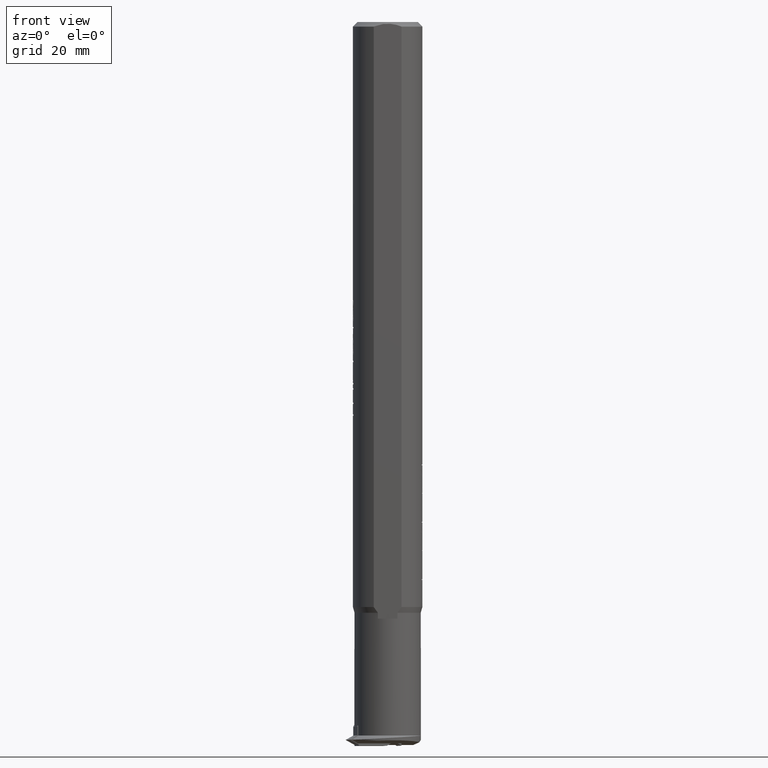
[diagram: clean part render]
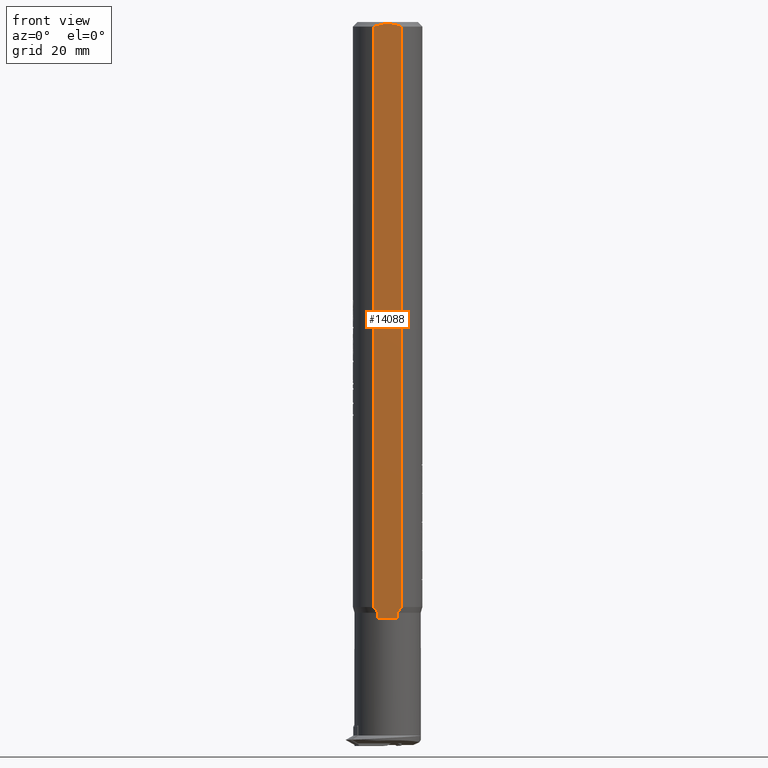
[diagram: same view with one face highlighted and labeled with its STEP entity id]
A machine part, front view. The second image highlights one B-rep face of the part: STEP entity #14088.
In plain terms, the highlighted planar face has unit normal (0, 1, 0).
Its self-contained STEP definition (entity closure, byte-faithful):
#92 = CARTESIAN_POINT ( 'NONE',  ( 15.85597794397921412, 15.47579512833312876, 30.10978475732757076 ) ) ;
#337 = VERTEX_POINT ( 'NONE', #10932 ) ;
#355 = VERTEX_POINT ( 'NONE', #2674 ) ;
#443 = VERTEX_POINT ( 'NONE', #9964 ) ;
#488 = ORIENTED_EDGE ( 'NONE', *, *, #8204, .F. ) ;
#607 = CARTESIAN_POINT ( 'NONE',  ( -87.24402205604130245, 15.47579512832777660, 33.46388672357572602 ) ) ;
#826 = CARTESIAN_POINT ( 'NONE',  ( -85.34402205602309266, 15.47579512832781035, 29.38891997880680762 ) ) ;
#1115 = ORIENTED_EDGE ( 'NONE', *, *, #1974, .F. ) ;
#1173 = CARTESIAN_POINT ( 'NONE',  ( -87.24402205604130245, 15.47579512832781568, 30.10978475732587611 ) ) ;
#1217 = EDGE_CURVE ( 'NONE', #355, #7209, #12611, .T. ) ;
#1358 = EDGE_CURVE ( 'NONE', #1454, #355, #14160, .T. ) ;
#1454 = VERTEX_POINT ( 'NONE', #92 ) ;
#1625 = CARTESIAN_POINT ( 'NONE',  ( -87.24402205604130245, 15.47579512832781390, 29.38891997879452234 ) ) ;
#1974 = EDGE_CURVE ( 'NONE', #443, #337, #5346, .T. ) ;
#2091 = ORIENTED_EDGE ( 'NONE', *, *, #1217, .F. ) ;
#2108 = ORIENTED_EDGE ( 'NONE', *, *, #1358, .F. ) ;
#2466 = ORIENTED_EDGE ( 'NONE', *, *, #9366, .F. ) ;
#2674 = CARTESIAN_POINT ( 'NONE',  ( 14.85597794396622362, 15.47579512832781035, 29.38891997878251416 ) ) ;
#3080 = CARTESIAN_POINT ( 'NONE',  ( 14.85597794395958537, 15.47579512832780679, 34.18475150212336899 ) ) ;
#3091 = DIRECTION ( 'NONE',  ( 1.000000000000000000, 0.000000000000000000, 0.000000000000000000 ) ) ;
#3234 = VECTOR ( 'NONE', #10793, 1000.000000000000000 ) ;
#3246 = EDGE_CURVE ( 'NONE', #12803, #15793, #10407, .T. ) ;
#3299 = CARTESIAN_POINT ( 'NONE',  ( 14.85597794396622362, 15.47579512832781035, 29.38891997878251416 ) ) ;
#3548 = PLANE ( 'NONE',  #10221 ) ;
#3642 = CARTESIAN_POINT ( 'NONE',  ( -85.62270775363694497, 15.47579512832781035, 30.16355541109078331 ) ) ;
#4525 = CARTESIAN_POINT ( 'NONE',  ( -85.75272465052165671, 15.47579512832781212, 30.76189325582878453 ) ) ;
#4599 = DIRECTION ( 'NONE',  ( 0.000000000000000000, 1.000000000000000000, 0.000000000000000000 ) ) ;
#4606 = CARTESIAN_POINT ( 'NONE',  ( 15.20509743724650065, 15.47579512832780857, 33.96636216239427597 ) ) ;
#4609 = CARTESIAN_POINT ( 'NONE',  ( -85.49774328179755400, 15.47579512832781035, 33.80011440618757490 ) ) ;
#5318 = DIRECTION ( 'NONE',  ( -1.000000000000000000, -0.000000000000000000, -0.000000000000000000 ) ) ;
#5346 = LINE ( 'NONE', #607, #5395 ) ;
#5395 = VECTOR ( 'NONE', #3091, 1000.000000000000000 ) ;
#5705 = EDGE_LOOP ( 'NONE', ( #1115, #488, #13062, #2466, #2091, #2108, #11677, #14162 ) ) ;
#6963 = DIRECTION ( 'NONE',  ( 1.000000000000000000, 0.000000000000000000, 0.000000000000000000 ) ) ;
#7006 = CARTESIAN_POINT ( 'NONE',  ( -85.78642583554476175, 15.47579512832780857, 30.96345730120969364 ) ) ;
#7209 = VERTEX_POINT ( 'NONE', #826 ) ;
#7774 = EDGE_CURVE ( 'NONE', #11077, #1454, #11912, .T. ) ;
#8196 = CARTESIAN_POINT ( 'NONE',  ( 15.54288694697827289, 15.47579512832780857, 33.73225561200577971 ) ) ;
#8204 = EDGE_CURVE ( 'NONE', #15793, #443, #9540, .T. ) ;
#8274 = CARTESIAN_POINT ( 'NONE',  ( -85.84399396855110353, 15.47579512832780679, 31.57902240700330410 ) ) ;
#8298 = CARTESIAN_POINT ( 'NONE',  ( 16.85597794395869542, 15.47579512832781212, 30.10978475732588677 ) ) ;
#8353 = CARTESIAN_POINT ( 'NONE',  ( -85.79699190026903466, 15.47579512832780857, 32.60639752785628076 ) ) ;
#8522 = CARTESIAN_POINT ( 'NONE',  ( -85.62408304664175773, 15.47579512832780857, 33.40542779701191023 ) ) ;
#9310 = B_SPLINE_CURVE_WITH_KNOTS ( 'NONE', 3,
 ( #13340, #12142, #3642, #4525, #7006, #10854, #8274, #14625, #8353, #8522, #4609, #10615 ),
 .UNSPECIFIED., .F., .F.,
 ( 4, 2, 2, 2, 2, 4 ),
 ( 7.673814343113766479E-15, 0.001224598678117836108, 0.001836898017172907630, 0.002449197356227989994, 0.003673796034338173803, 0.004898394712448357613 ),
 .UNSPECIFIED. ) ;
#9366 = EDGE_CURVE ( 'NONE', #7209, #12803, #9310, .T. ) ;
#9371 = CARTESIAN_POINT ( 'NONE',  ( 15.85597794397921412, 15.47579512833312876, 30.10978475732757076 ) ) ;
#9540 = B_SPLINE_CURVE_WITH_KNOTS ( 'NONE', 3,
 ( #3080, #4606, #8196, #9626 ),
 .UNSPECIFIED., .F., .F.,
 ( 4, 4 ),
 ( 8.747373874393056017E-15, 0.001232739238030622830 ),
 .UNSPECIFIED. ) ;
#9626 = CARTESIAN_POINT ( 'NONE',  ( 15.85597794396112903, 15.47579512832779258, 33.46388672357217331 ) ) ;
#9964 = CARTESIAN_POINT ( 'NONE',  ( 15.85597794396112903, 15.47579512832779258, 33.46388672357217331 ) ) ;
#10221 = AXIS2_PLACEMENT_3D ( 'NONE', #10767, #4599, #13163 ) ;
#10407 = LINE ( 'NONE', #11771, #10524 ) ;
#10524 = VECTOR ( 'NONE', #6963, 1000.000000000000000 ) ;
#10615 = CARTESIAN_POINT ( 'NONE',  ( -85.34402205602894753, 15.47579512832780679, 34.18475150202239377 ) ) ;
#10767 = CARTESIAN_POINT ( 'NONE',  ( 16.85597794395869542, 15.47579512832780857, 25.21283888763597858 ) ) ;
#10793 = DIRECTION ( 'NONE',  ( -1.000000000000000000, -0.000000000000000000, -0.000000000000000000 ) ) ;
#10854 = CARTESIAN_POINT ( 'NONE',  ( -85.83207693008444039, 15.47579512832781035, 31.37136567450938429 ) ) ;
#10922 = FACE_OUTER_BOUND ( 'NONE', #5705, .T. ) ;
#10932 = CARTESIAN_POINT ( 'NONE',  ( 16.85597794395869542, 15.47579512832779258, 33.46388672357578287 ) ) ;
#11077 = VERTEX_POINT ( 'NONE', #8298 ) ;
#11677 = ORIENTED_EDGE ( 'NONE', *, *, #7774, .F. ) ;
#11722 = CARTESIAN_POINT ( 'NONE',  ( 15.54288694698164264, 15.47579512832780857, 29.84141586889884223 ) ) ;
#11765 = VECTOR ( 'NONE', #11886, 1000.000000000000000 ) ;
#11771 = CARTESIAN_POINT ( 'NONE',  ( -87.24402205604130245, 15.47579512832780679, 34.18475150210719704 ) ) ;
#11813 = CARTESIAN_POINT ( 'NONE',  ( 16.85597794395869542, 15.47579512832780857, 25.21283888763597858 ) ) ;
#11886 = DIRECTION ( 'NONE',  ( -0.000000000000000000, 0.000000000000000000, -1.000000000000000000 ) ) ;
#11912 = LINE ( 'NONE', #1173, #3234 ) ;
#12026 = VECTOR ( 'NONE', #5318, 1000.000000000000000 ) ;
#12142 = CARTESIAN_POINT ( 'NONE',  ( -85.49756718745904038, 15.47579512832236759, 29.77311645621364278 ) ) ;
#12504 = CARTESIAN_POINT ( 'NONE',  ( -85.34402205602894753, 15.47579512832780679, 34.18475150202239377 ) ) ;
#12611 = LINE ( 'NONE', #1625, #12026 ) ;
#12803 = VERTEX_POINT ( 'NONE', #12504 ) ;
#12922 = CARTESIAN_POINT ( 'NONE',  ( 15.20509743725572882, 15.47579512832780857, 29.60730931851386671 ) ) ;
#13062 = ORIENTED_EDGE ( 'NONE', *, *, #3246, .F. ) ;
#13091 = LINE ( 'NONE', #11813, #11765 ) ;
#13163 = DIRECTION ( 'NONE',  ( 0.000000000000000000, -0.000000000000000000, 1.000000000000000000 ) ) ;
#13340 = CARTESIAN_POINT ( 'NONE',  ( -85.34402205602309266, 15.47579512832781035, 29.38891997880680762 ) ) ;
#14069 = EDGE_CURVE ( 'NONE', #337, #11077, #13091, .T. ) ;
#14088 = ADVANCED_FACE ( 'NONE', ( #10922 ), #3548, .F. ) ;
#14160 = B_SPLINE_CURVE_WITH_KNOTS ( 'NONE', 3,
 ( #9371, #11722, #12922, #3299 ),
 .UNSPECIFIED., .F., .F.,
 ( 4, 4 ),
 ( 9.473962576760045072E-15, 0.001232739238018094440 ),
 .UNSPECIFIED. ) ;
#14162 = ORIENTED_EDGE ( 'NONE', *, *, #14069, .F. ) ;
#14625 = CARTESIAN_POINT ( 'NONE',  ( -85.84407807963506798, 15.47579512832780502, 32.20022831252147455 ) ) ;
#15539 = CARTESIAN_POINT ( 'NONE',  ( 14.85597794395958537, 15.47579512832780679, 34.18475150212336899 ) ) ;
#15793 = VERTEX_POINT ( 'NONE', #15539 ) ;